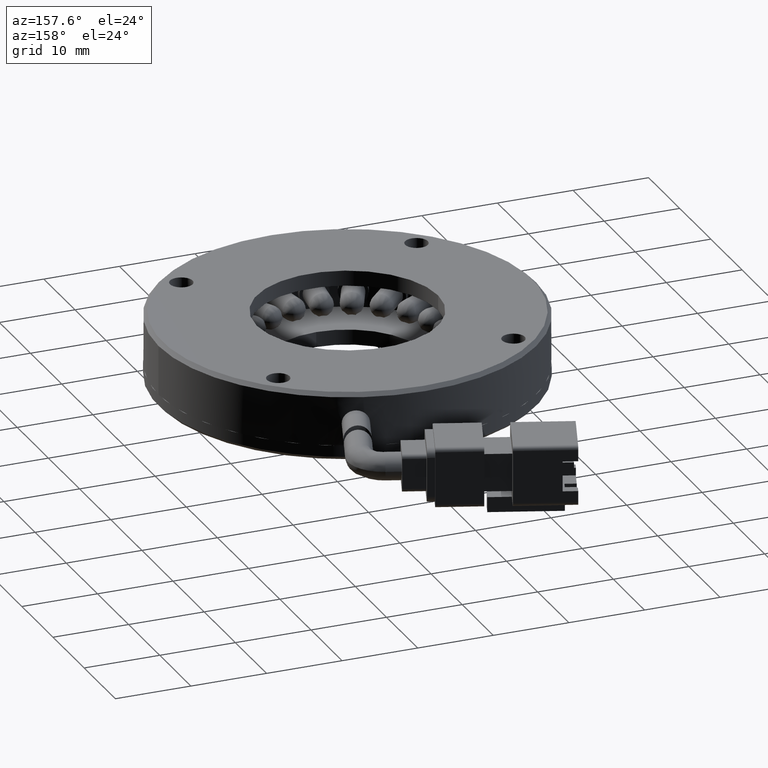
[diagram: clean part render]
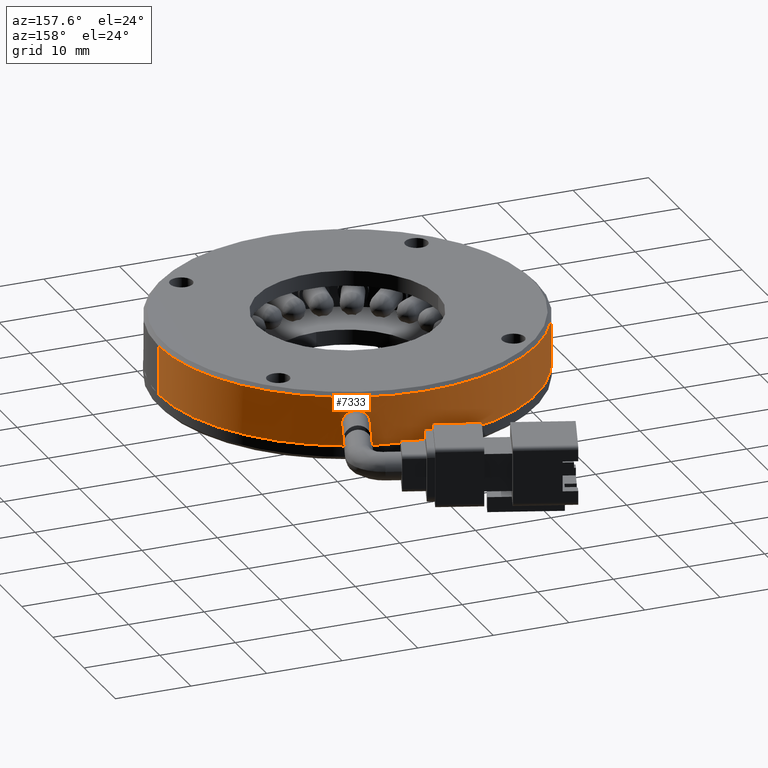
[diagram: same view with one face highlighted and labeled with its STEP entity id]
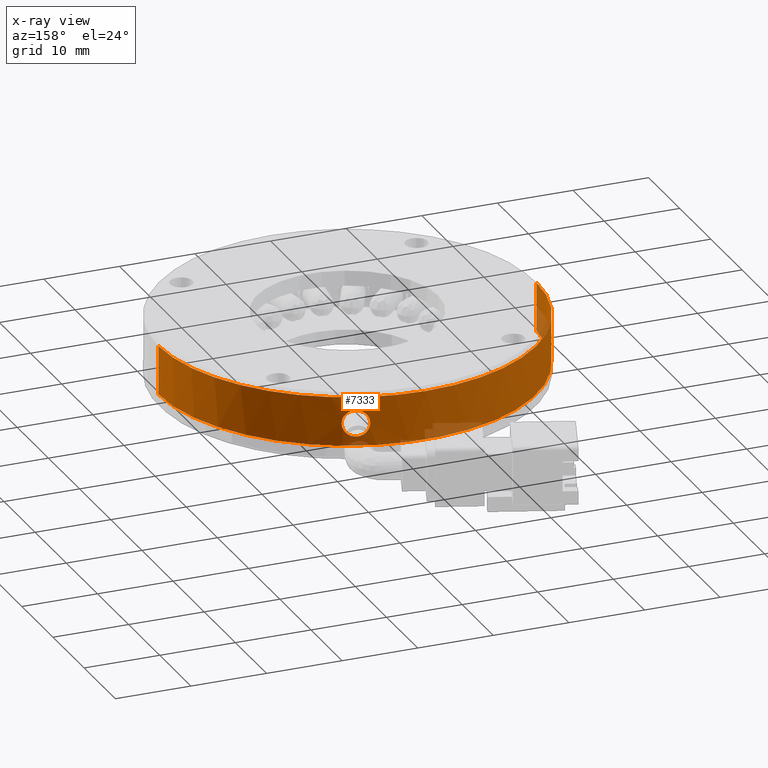
[diagram: x-ray of the same camera — body ghosted, the highlighted face saturated]
A machine part, auxiliary view. The second image highlights one B-rep face of the part: STEP entity #7333.
The next image is the same camera in x-ray: the body ghosted, the highlighted face saturated — about 5% of this face is hidden behind the body in this view.
In plain terms, the highlighted cylindrical surface (partial cylindrical patch) has radius 25 mm, axis along (-0, -0, -1).
Its self-contained STEP definition (entity closure, byte-faithful):
#5 = FACE_OUTER_BOUND ( 'NONE', #3759, .T. ) ;
#703 = CARTESIAN_POINT ( 'NONE',  ( -111.1630890184714000, 29.44058588869617700, 0.5667472161147100200 ) ) ;
#704 = CIRCLE ( 'NONE', #21381, 25.00000000000002100 ) ;
#785 = CARTESIAN_POINT ( 'NONE',  ( -113.5521613425819400, 30.32306531074151600, 0.8199237522542087700 ) ) ;
#873 = CARTESIAN_POINT ( 'NONE',  ( -113.7083522816373500, 30.37130660840470100, -1.656771934996146500 ) ) ;
#971 = CARTESIAN_POINT ( 'NONE',  ( -111.2309548412716000, 29.46960093949539700, -1.656699850745908100 ) ) ;
#1226 = EDGE_CURVE ( 'NONE', #12086, #18501, #1285, .T. ) ;
#1285 = CIRCLE ( 'NONE', #18148, 25.00000000000002100 ) ;
#2653 = CARTESIAN_POINT ( 'NONE',  ( -110.8447933233779400, 29.30151549114610500, -0.2706593449028826300 ) ) ;
#2746 = CARTESIAN_POINT ( 'NONE',  ( -111.4544966116271200, 29.56373661559442200, 0.8988357844807720600 ) ) ;
#2828 = DIRECTION ( 'NONE',  ( 0.0000000000000000000, 0.0000000000000000000, 1.000000000000000000 ) ) ;
#2836 = CARTESIAN_POINT ( 'NONE',  ( -113.7780215783414100, 30.39241410024276400, 0.5682636300042668300 ) ) ;
#2873 = CYLINDRICAL_SURFACE ( 'NONE', #12927, 25.00000000000002100 ) ;
#2924 = CARTESIAN_POINT ( 'NONE',  ( -113.2906550353819600, 30.24056633086003400, -2.029212519311285800 ) ) ;
#3001 = CARTESIAN_POINT ( 'NONE',  ( -111.0475568776313500, 29.39074353383935200, -1.378855571451671700 ) ) ;
#3648 = CARTESIAN_POINT ( 'NONE',  ( -121.0083944312392800, 6.460725025466879300, 3.000000000000048800 ) ) ;
#3759 = EDGE_LOOP ( 'NONE', ( #15298, #22574, #17781, #5124, #20682 ) ) ;
#4173 = VERTEX_POINT ( 'NONE', #6308 ) ;
#4694 = CARTESIAN_POINT ( 'NONE',  ( -110.8344032207654200, 29.29687844168828500, -0.3843600106547860300 ) ) ;
#4779 = CARTESIAN_POINT ( 'NONE',  ( -112.0269386227320200, 29.79263033668999900, 1.203820381108437600 ) ) ;
#4862 = CARTESIAN_POINT ( 'NONE',  ( -113.9524064495231000, 30.44436476454918900, 0.2766177420923214800 ) ) ;
#4950 = CARTESIAN_POINT ( 'NONE',  ( -112.6735715373298300, 30.03153009426935000, -2.249841570044125200 ) ) ;
#5040 = CARTESIAN_POINT ( 'NONE',  ( -110.8761749085037700, 29.31561276686571200, -0.9586784205182885500 ) ) ;
#5078 = EDGE_CURVE ( 'NONE', #8055, #11127, #13946, .T. ) ;
#5124 = ORIENTED_EDGE ( 'NONE', *, *, #14150, .F. ) ;
#5695 = DIRECTION ( 'NONE',  ( -1.000000000000000000, 0.0000000000000000000, 0.0000000000000000000 ) ) ;
#6199 = EDGE_LOOP ( 'NONE', ( #6844, #26130 ) ) ;
#6308 = CARTESIAN_POINT ( 'NONE',  ( -146.0083944312393100, 6.460725025466879300, -3.499999999999936500 ) ) ;
#6553 = CARTESIAN_POINT ( 'NONE',  ( -121.0083944312392800, 6.460725025466879300, 3.000000000000048800 ) ) ;
#6825 = CARTESIAN_POINT ( 'NONE',  ( -112.5640202245140700, 29.99167433319508500, 1.250078586293178300 ) ) ;
#6844 = ORIENTED_EDGE ( 'NONE', *, *, #15443, .T. ) ;
#6914 = CARTESIAN_POINT ( 'NONE',  ( -114.1233273935160500, 30.49394894332811400, -0.4999999999999375500 ) ) ;
#6916 = CARTESIAN_POINT ( 'NONE',  ( -114.1233273935160200, 30.49394894332811400, -0.2687202921479815400 ) ) ;
#7001 = CARTESIAN_POINT ( 'NONE',  ( -112.2430697456498800, 29.87400503534368900, -2.238734806832949800 ) ) ;
#7084 = CARTESIAN_POINT ( 'NONE',  ( -110.8344032207654000, 29.29687844168827800, -0.4999999999999373300 ) ) ;
#7333 = ADVANCED_FACE ( 'NONE', ( #10796, #5 ), #2873, .T. ) ;
#8055 = VERTEX_POINT ( 'NONE', #11883 ) ;
#8209 = LINE ( 'NONE', #22420, #23858 ) ;
#8777 = CARTESIAN_POINT ( 'NONE',  ( -110.8344032207654000, 29.29687844168827800, -0.4999999999999373300 ) ) ;
#8862 = CARTESIAN_POINT ( 'NONE',  ( -112.8852253032938400, 30.10447094237889900, 1.194125674980336200 ) ) ;
#8958 = CARTESIAN_POINT ( 'NONE',  ( -114.0695595264802900, 30.47849067386309200, -0.9530241429067993800 ) ) ;
#9053 = CARTESIAN_POINT ( 'NONE',  ( -111.9314441377384100, 29.75493476671087800, -2.161110682240173600 ) ) ;
#9064 = CARTESIAN_POINT ( 'NONE',  ( -121.0083944312392800, 6.460725025466879300, -3.499999999999936500 ) ) ;
#10342 = EDGE_CURVE ( 'NONE', #20710, #4173, #15694, .T. ) ;
#10535 = AXIS2_PLACEMENT_3D ( 'NONE', #9064, #23330, #11098 ) ;
#10796 = FACE_BOUND ( 'NONE', #6199, .T. ) ;
#10804 = CARTESIAN_POINT ( 'NONE',  ( -110.9163698376107300, 29.33326262859649000, 0.06416800073327010000 ) ) ;
#10906 = CARTESIAN_POINT ( 'NONE',  ( -113.1895775837010200, 30.20682654138743600, 1.073533993453686300 ) ) ;
#10988 = CARTESIAN_POINT ( 'NONE',  ( -113.9526663194699700, 30.44444111821969700, -1.276062738186500000 ) ) ;
#11081 = CARTESIAN_POINT ( 'NONE',  ( -111.6391557250145900, 29.63886923846742500, -2.018781018736236300 ) ) ;
#11098 = DIRECTION ( 'NONE',  ( -1.000000000000000000, 0.0000000000000000000, 0.0000000000000000000 ) ) ;
#11127 = VERTEX_POINT ( 'NONE', #18729 ) ;
#11883 = CARTESIAN_POINT ( 'NONE',  ( -110.8344032207654000, 29.29687844168827800, -0.4999999999999373300 ) ) ;
#11885 = EDGE_CURVE ( 'NONE', #12492, #12086, #704, .T. ) ;
#11971 = DIRECTION ( 'NONE',  ( -0.0000000000000000000, -0.0000000000000000000, -1.000000000000000000 ) ) ;
#12086 = VERTEX_POINT ( 'NONE', #20581 ) ;
#12492 = VERTEX_POINT ( 'NONE', #16247 ) ;
#12884 = CARTESIAN_POINT ( 'NONE',  ( -111.0463100420457900, 29.39020209291525600, 0.3765566954437343200 ) ) ;
#12927 = AXIS2_PLACEMENT_3D ( 'NONE', #26243, #11971, #14105 ) ;
#12971 = CARTESIAN_POINT ( 'NONE',  ( -113.4677363347762500, 30.29656943184603800, 0.8921943857493096500 ) ) ;
#13051 = CARTESIAN_POINT ( 'NONE',  ( -113.7791660982948200, 30.39276007629794300, -1.566747216114585700 ) ) ;
#13150 = CARTESIAN_POINT ( 'NONE',  ( -111.3817836819065800, 29.53311244513937300, -1.819923752254090100 ) ) ;
#13946 = B_SPLINE_CURVE_WITH_KNOTS ( 'NONE', 3,
 ( #8777, #4694, #2653, #23069, #10804, #25109, #12884, #703, #14914, #2746, #16975, #4779, #19030, #6825, #21097, #8862, #23152, #10906, #25193, #12971, #785, #15006, #2836, #17061, #4862, #19130, #6916, #21184 ),
 .UNSPECIFIED., .F., .F.,
 ( 4, 2, 2, 2, 2, 2, 2, 2, 2, 2, 2, 2, 2, 4 ),
 ( 1.301042606982605300E-018, 0.0003419877767608119500, 0.0006839755535216223900, 0.001025963330282432900, 0.001367951107043243300, 0.002051926660564840200, 0.002735902214086437100, 0.003077889990847237900, 0.003419877767608037400, 0.003761865544368838300, 0.004103853321129637800, 0.004445841097890437800, 0.004787828874651239500, 0.005471804428172839400 ),
 .UNSPECIFIED. ) ;
#14088 = DIRECTION ( 'NONE',  ( -0.0000000000000000000, -0.0000000000000000000, -1.000000000000000000 ) ) ;
#14105 = DIRECTION ( 'NONE',  ( -1.000000000000000000, 0.0000000000000000000, 0.0000000000000000000 ) ) ;
#14150 = EDGE_CURVE ( 'NONE', #18501, #4173, #20210, .T. ) ;
#14265 = CARTESIAN_POINT ( 'NONE',  ( -146.0083944312393100, 6.460725025466879300, -56.72319322623545200 ) ) ;
#14914 = CARTESIAN_POINT ( 'NONE',  ( -111.2311255725644800, 29.46966982277295700, 0.6567719349962768400 ) ) ;
#15006 = CARTESIAN_POINT ( 'NONE',  ( -113.7085273467129000, 30.37136358471238800, 0.6566998507460243300 ) ) ;
#15095 = CARTESIAN_POINT ( 'NONE',  ( -113.4767751695011700, 30.29978581605535800, -1.898835784480642900 ) ) ;
#15186 = CARTESIAN_POINT ( 'NONE',  ( -111.1641881607433500, 29.44105653890676100, -1.568263630004141500 ) ) ;
#15298 = ORIENTED_EDGE ( 'NONE', *, *, #11885, .F. ) ;
#15443 = EDGE_CURVE ( 'NONE', #11127, #8055, #26324, .T. ) ;
#15694 = CIRCLE ( 'NONE', #10535, 25.00000000000002100 ) ;
#16247 = CARTESIAN_POINT ( 'NONE',  ( -96.00839443123928200, 6.460725025466882900, 3.000000000000048800 ) ) ;
#16975 = CARTESIAN_POINT ( 'NONE',  ( -111.6351384574573000, 29.63800757416121500, 1.029212519311412300 ) ) ;
#17061 = CARTESIAN_POINT ( 'NONE',  ( -113.8997069009265600, 30.42884124598047900, 0.3788555714517951000 ) ) ;
#17135 = CARTESIAN_POINT ( 'NONE',  ( -112.8911291000310900, 30.10716994716317500, -2.203820381108314100 ) ) ;
#17237 = CARTESIAN_POINT ( 'NONE',  ( -110.9972083558794200, 29.36876062210267300, -1.276617742092195600 ) ) ;
#17781 = ORIENTED_EDGE ( 'NONE', *, *, #10342, .T. ) ;
#17901 = DIRECTION ( 'NONE',  ( 0.0000000000000000000, 0.0000000000000000000, 1.000000000000000000 ) ) ;
#18148 = AXIS2_PLACEMENT_3D ( 'NONE', #6553, #2828, #18937 ) ;
#18501 = VERTEX_POINT ( 'NONE', #23306 ) ;
#18729 = CARTESIAN_POINT ( 'NONE',  ( -114.1233273935160500, 30.49394894332811400, -0.4999999999999375500 ) ) ;
#18937 = DIRECTION ( 'NONE',  ( -1.000000000000000000, 0.0000000000000000000, 0.0000000000000000000 ) ) ;
#19030 = CARTESIAN_POINT ( 'NONE',  ( -112.2422177449365400, 29.87453015340034000, 1.249841570044250400 ) ) ;
#19129 = CARTESIAN_POINT ( 'NONE',  ( -114.1233273935160600, 30.49394894332811700, -0.6156399893450896800 ) ) ;
#19130 = CARTESIAN_POINT ( 'NONE',  ( -114.0792862321444300, 30.48144994571193700, -0.04132157948158909200 ) ) ;
#19212 = CARTESIAN_POINT ( 'NONE',  ( -112.3517577087485800, 29.91441709560598400, -2.250078586293052100 ) ) ;
#19298 = CARTESIAN_POINT ( 'NONE',  ( -110.8344032207653800, 29.29687844168827800, -0.7312802495289139100 ) ) ;
#19552 = VECTOR ( 'NONE', #14088, 1000.000000000000000 ) ;
#20210 = LINE ( 'NONE', #14265, #19552 ) ;
#20581 = CARTESIAN_POINT ( 'NONE',  ( -121.0083944312392800, 31.46072502546688900, 3.000000000000048800 ) ) ;
#20682 = ORIENTED_EDGE ( 'NONE', *, *, #1226, .F. ) ;
#20710 = VERTEX_POINT ( 'NONE', #21192 ) ;
#21097 = CARTESIAN_POINT ( 'NONE',  ( -112.6732564062982600, 30.03058017499807200, 1.238734806833075200 ) ) ;
#21181 = CARTESIAN_POINT ( 'NONE',  ( -114.1123874752092500, 30.49082250007501600, -0.7293406550969876400 ) ) ;
#21184 = CARTESIAN_POINT ( 'NONE',  ( -114.1233273935160500, 30.49394894332811400, -0.4999999999999375500 ) ) ;
#21192 = CARTESIAN_POINT ( 'NONE',  ( -96.00839443123928200, 6.460725025466882900, -3.499999999999936500 ) ) ;
#21265 = CARTESIAN_POINT ( 'NONE',  ( -112.0331960802497400, 29.79435766646588500, -2.194125674980212300 ) ) ;
#21381 = AXIS2_PLACEMENT_3D ( 'NONE', #3648, #17901, #5695 ) ;
#22420 = CARTESIAN_POINT ( 'NONE',  ( -96.00839443123928200, 6.460725025466882900, -56.72319322623545200 ) ) ;
#22574 = ORIENTED_EDGE ( 'NONE', *, *, #22689, .T. ) ;
#22689 = EDGE_CURVE ( 'NONE', #12492, #20710, #8209, .T. ) ;
#23069 = CARTESIAN_POINT ( 'NONE',  ( -110.8855281806057900, 29.31959803899421100, -0.04697585709307224000 ) ) ;
#23152 = CARTESIAN_POINT ( 'NONE',  ( -112.9885123649316200, 30.13967613699775700, 1.161110682240300100 ) ) ;
#23231 = CARTESIAN_POINT ( 'NONE',  ( -114.0371500176272700, 30.46913372181045400, -1.064168000733145800 ) ) ;
#23306 = CARTESIAN_POINT ( 'NONE',  ( -146.0083944312393100, 6.460725025466879300, 3.000000000000048800 ) ) ;
#23315 = CARTESIAN_POINT ( 'NONE',  ( -111.7342557962685000, 29.67713272948291000, -2.073533993453559300 ) ) ;
#23330 = DIRECTION ( 'NONE',  ( 0.0000000000000000000, 0.0000000000000000000, 1.000000000000000000 ) ) ;
#23858 = VECTOR ( 'NONE', #24465, 1000.000000000000000 ) ;
#24465 = DIRECTION ( 'NONE',  ( -0.0000000000000000000, -0.0000000000000000000, -1.000000000000000000 ) ) ;
#25109 = CARTESIAN_POINT ( 'NONE',  ( -110.9969602047572900, 29.36865207122566800, 0.2760627381866233000 ) ) ;
#25193 = CARTESIAN_POINT ( 'NONE',  ( -113.2870237627534100, 30.23864415420301600, 1.018781018736355100 ) ) ;
#25282 = CARTESIAN_POINT ( 'NONE',  ( -113.9010100639157300, 30.42922792863499000, -1.376556695443609900 ) ) ;
#25362 = CARTESIAN_POINT ( 'NONE',  ( -111.4634882126581300, 29.56708277331109600, -1.892194385749193000 ) ) ;
#26130 = ORIENTED_EDGE ( 'NONE', *, *, #5078, .T. ) ;
#26243 = CARTESIAN_POINT ( 'NONE',  ( -121.0083944312392800, 6.460725025466879300, -56.72319322623545200 ) ) ;
#26324 = B_SPLINE_CURVE_WITH_KNOTS ( 'NONE', 3,
 ( #6914, #19129, #21181, #8958, #23231, #10988, #25282, #13051, #873, #15095, #2924, #17135, #4950, #19212, #7001, #21265, #9053, #23315, #11081, #25362, #13150, #971, #15186, #3001, #17237, #5040, #19298, #7084 ),
 .UNSPECIFIED., .F., .F.,
 ( 4, 2, 2, 2, 2, 2, 2, 2, 2, 2, 2, 2, 2, 4 ),
 ( 0.005471804428172838600, 0.005813792605415830200, 0.006155780782658822800, 0.006497768959901814400, 0.006839757137144806100, 0.007523733491630815400, 0.008207709846116826400, 0.008549698023359832800, 0.008891686200602839200, 0.009233674377845845600, 0.009575662555088852000, 0.009917650732331858400, 0.01025963890957486500, 0.01094361526406086400 ),
 .UNSPECIFIED. ) ;